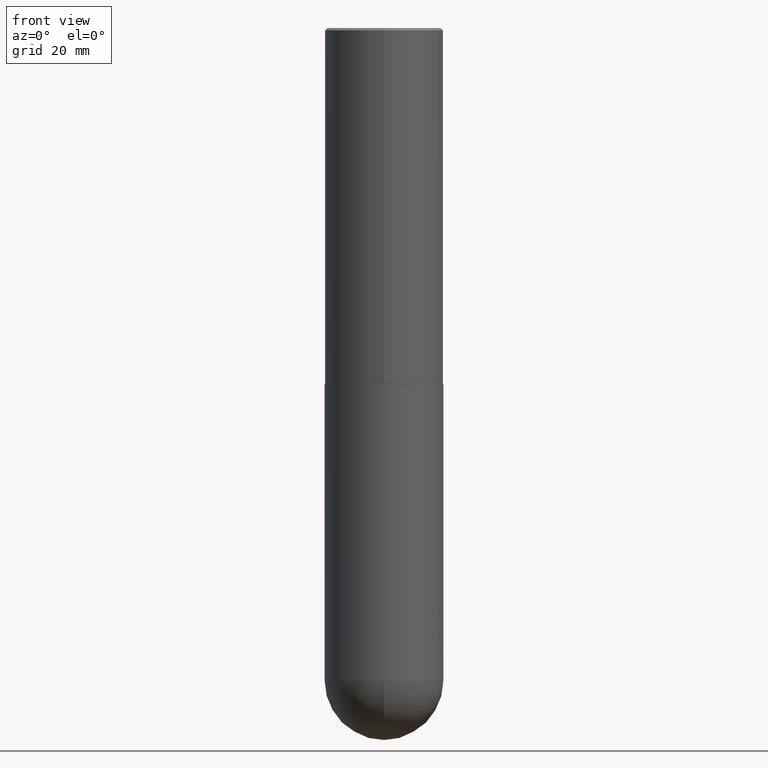
[diagram: clean part render]
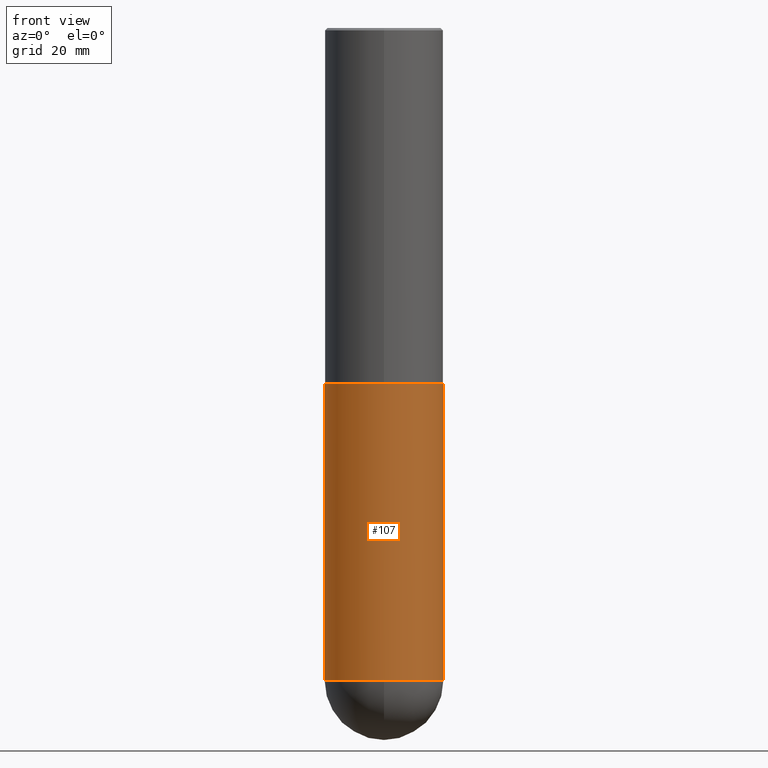
[diagram: same view with one face highlighted and labeled with its STEP entity id]
A machine part, front view. The second image highlights one B-rep face of the part: STEP entity #107.
In plain terms, the highlighted cylindrical surface (partial cylindrical patch) has radius 12.7 mm, axis along (-0, 0, 1).
Its self-contained STEP definition (entity closure, byte-faithful):
#23 = CIRCLE ( 'NONE', #356, 0.5000000000000000000 ) ;
#42 = EDGE_CURVE ( 'NONE', #62, #159, #321, .T. ) ;
#48 = CARTESIAN_POINT ( 'NONE',  ( -0.5000000000000000000, -1.128608201128287263E-14, -5.500000000000000888 ) ) ;
#50 = DIRECTION ( 'NONE',  ( -2.445468806185136597E-29, 3.491481338843145583E-15, 1.000000000000000000 ) ) ;
#54 = VERTEX_POINT ( 'NONE', #317 ) ;
#62 = VERTEX_POINT ( 'NONE', #48 ) ;
#70 = CARTESIAN_POINT ( 'NONE',  ( 0.000000000000000000, 0.000000000000000000, 0.000000000000000000 ) ) ;
#74 = AXIS2_PLACEMENT_3D ( 'NONE', #179, #50, #326 ) ;
#78 = CARTESIAN_POINT ( 'NONE',  ( 0.5000000000000000000, -1.396592535537257129E-14, -3.000000000000000444 ) ) ;
#107 = ADVANCED_FACE ( 'NONE', ( #212 ), #400, .T. ) ;
#115 = DIRECTION ( 'NONE',  ( 1.000000000000000000, -6.982962677686266711E-15, 4.876176775795935793E-29 ) ) ;
#118 = ORIENTED_EDGE ( 'NONE', *, *, #235, .F. ) ;
#123 = EDGE_CURVE ( 'NONE', #62, #323, #285, .T. ) ;
#126 = DIRECTION ( 'NONE',  ( -2.445468806185136597E-29, 3.491481338843145583E-15, 1.000000000000000000 ) ) ;
#132 = CARTESIAN_POINT ( 'NONE',  ( 7.336406418555409790E-29, -1.047444401652943635E-14, -3.000000000000000444 ) ) ;
#138 = EDGE_CURVE ( 'NONE', #159, #54, #23, .T. ) ;
#159 = VERTEX_POINT ( 'NONE', #277 ) ;
#172 = LINE ( 'NONE', #289, #253 ) ;
#179 = CARTESIAN_POINT ( 'NONE',  ( 1.345007843401825128E-28, -1.920314736363730603E-14, -5.500000000000000888 ) ) ;
#181 = ORIENTED_EDGE ( 'NONE', *, *, #189, .T. ) ;
#189 = EDGE_CURVE ( 'NONE', #54, #223, #172, .T. ) ;
#192 = ORIENTED_EDGE ( 'NONE', *, *, #42, .T. ) ;
#198 = DIRECTION ( 'NONE',  ( -2.445468806185136877E-29, 3.491481338843145188E-15, 1.000000000000000000 ) ) ;
#206 = VECTOR ( 'NONE', #391, 39.37007874015748143 ) ;
#212 = FACE_OUTER_BOUND ( 'NONE', #358, .T. ) ;
#218 = DIRECTION ( 'NONE',  ( -2.445468806185136597E-29, 3.491481338843145583E-15, 1.000000000000000000 ) ) ;
#219 = DIRECTION ( 'NONE',  ( 1.000000000000000000, -6.982962677686266711E-15, 0.000000000000000000 ) ) ;
#223 = VERTEX_POINT ( 'NONE', #78 ) ;
#226 = CARTESIAN_POINT ( 'NONE',  ( 1.345007843401825128E-28, -1.920314736363730603E-14, -5.500000000000000888 ) ) ;
#235 = EDGE_CURVE ( 'NONE', #323, #223, #237, .T. ) ;
#237 = CIRCLE ( 'NONE', #403, 0.5000000000000000000 ) ;
#248 = ORIENTED_EDGE ( 'NONE', *, *, #138, .T. ) ;
#253 = VECTOR ( 'NONE', #198, 39.37007874015748143 ) ;
#265 = ORIENTED_EDGE ( 'NONE', *, *, #123, .F. ) ;
#277 = CARTESIAN_POINT ( 'NONE',  ( -3.552713678800369978E-15, -0.5000000000000196509, -5.499999999999999112 ) ) ;
#285 = LINE ( 'NONE', #353, #206 ) ;
#287 = AXIS2_PLACEMENT_3D ( 'NONE', #70, #366, #115 ) ;
#289 = CARTESIAN_POINT ( 'NONE',  ( 0.5000000000000000000, -3.491481338843133355E-15, 2.438088387897967896E-29 ) ) ;
#307 = DIRECTION ( 'NONE',  ( 1.000000000000000000, -6.982962677686270655E-15, 0.000000000000000000 ) ) ;
#317 = CARTESIAN_POINT ( 'NONE',  ( 0.5000000000000000000, -1.833027702892651007E-14, -5.500000000000000888 ) ) ;
#321 = CIRCLE ( 'NONE', #74, 0.5000000000000000000 ) ;
#323 = VERTEX_POINT ( 'NONE', #409 ) ;
#326 = DIRECTION ( 'NONE',  ( 1.000000000000000000, -6.982962677686270655E-15, 0.000000000000000000 ) ) ;
#353 = CARTESIAN_POINT ( 'NONE',  ( -0.5000000000000000000, 3.552713678800500929E-15, -2.459467545127452891E-29 ) ) ;
#356 = AXIS2_PLACEMENT_3D ( 'NONE', #226, #218, #307 ) ;
#358 = EDGE_LOOP ( 'NONE', ( #265, #192, #248, #181, #118 ) ) ;
#366 = DIRECTION ( 'NONE',  ( -2.445468806185136597E-29, 3.491481338843145583E-15, 1.000000000000000000 ) ) ;
#391 = DIRECTION ( 'NONE',  ( -2.445468806185136877E-29, 3.491481338843145188E-15, 1.000000000000000000 ) ) ;
#400 = CYLINDRICAL_SURFACE ( 'NONE', #287, 0.5000000000000000000 ) ;
#403 = AXIS2_PLACEMENT_3D ( 'NONE', #132, #126, #219 ) ;
#409 = CARTESIAN_POINT ( 'NONE',  ( -0.5000000000000000000, -1.128608201128286947E-14, -3.000000000000000444 ) ) ;